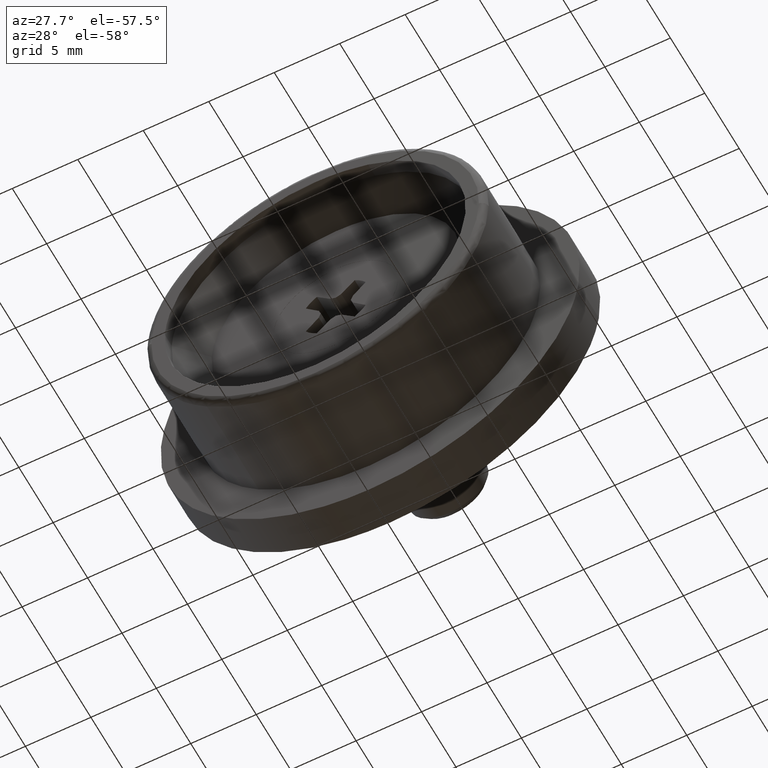
[diagram: clean part render]
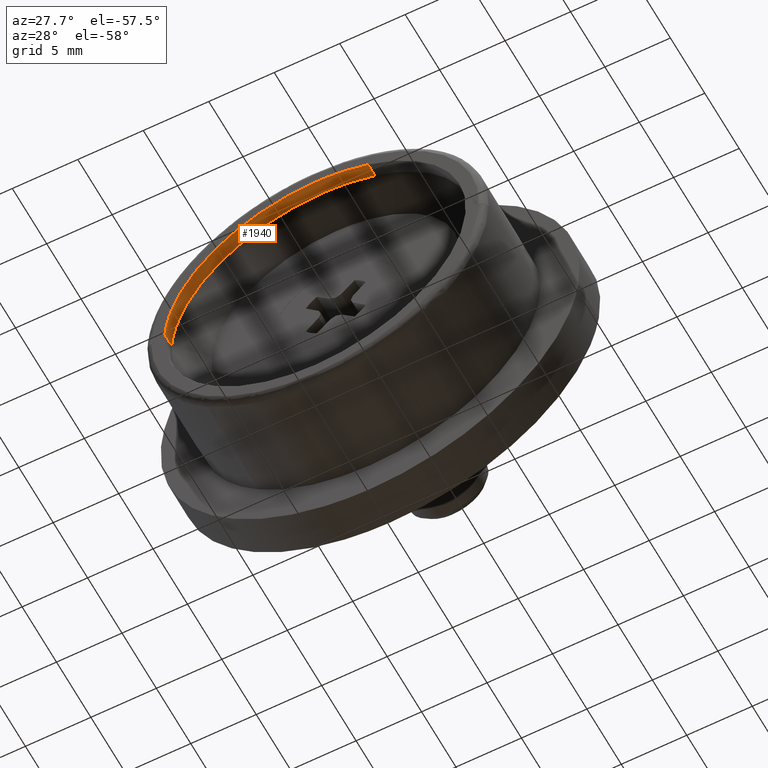
[diagram: same view with one face highlighted and labeled with its STEP entity id]
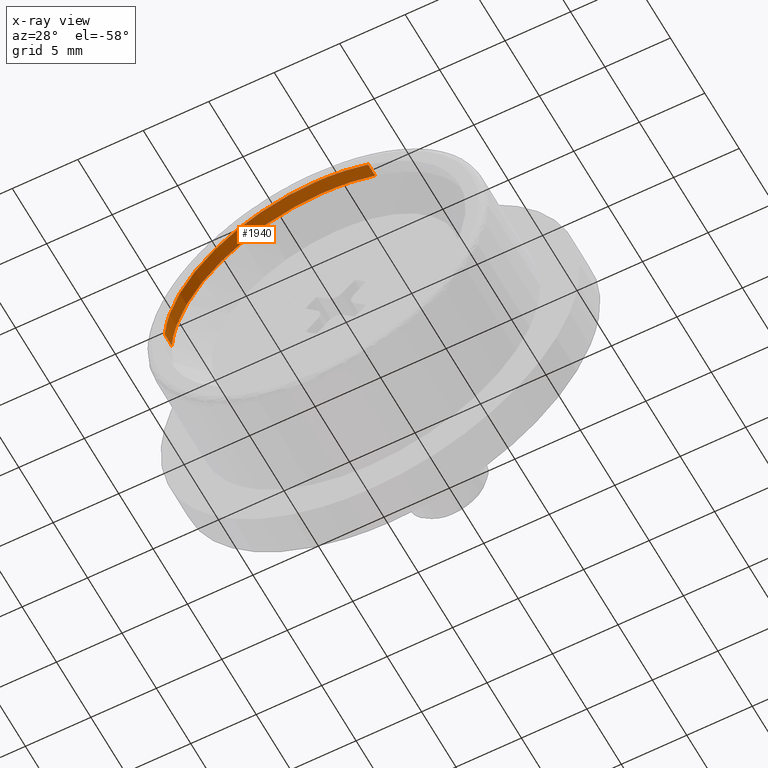
[diagram: x-ray of the same camera — body ghosted, the highlighted face saturated]
A machine part, auxiliary view. The second image highlights one B-rep face of the part: STEP entity #1940.
The next image is the same camera in x-ray: the body ghosted, the highlighted face saturated — about 0% of this face is hidden behind the body in this view.
In plain terms, the highlighted face is a freeform B-spline surface patch.
Its self-contained STEP definition (entity closure, byte-faithful):
#1842=CARTESIAN_POINT('',(4.144637516864448,1.025000000000000,10.727703719184255));
#1843=CARTESIAN_POINT('',(4.094063270624864,1.025000000000000,10.746699538225583));
#1844=CARTESIAN_POINT('',(2.426378694727196,1.025000000000000,11.373086222699232));
#1845=CARTESIAN_POINT('',(0.702058204650855,1.025000000000000,11.478550181851469));
#1846=CARTESIAN_POINT('',(-10.776491977200612,1.025000000000000,12.180608386502323));
#1847=CARTESIAN_POINT('',(-11.481523888814671,1.025000000000000,0.653438525574253));
#1848=CARTESIAN_POINT('',(-11.484487179411753,1.025000000000000,0.604989152578095));
#1849=CARTESIAN_POINT('',(4.144637516864448,-0.025625000000002,10.727703719184255));
#1850=CARTESIAN_POINT('',(4.094063270624864,-0.025625000000002,10.746699538225583));
#1851=CARTESIAN_POINT('',(2.426378694727196,-0.025625000000002,11.373086222699232));
#1852=CARTESIAN_POINT('',(0.702058204650855,-0.025625000000002,11.478550181851469));
#1853=CARTESIAN_POINT('',(-10.776491977200612,-0.025625000000002,12.180608386502323));
#1854=CARTESIAN_POINT('',(-11.481523888814671,-0.025625000000002,0.653438525574253));
#1855=CARTESIAN_POINT('',(-11.484487179411753,-0.025625000000002,0.604989152578095));
#1863=(BOUNDED_SURFACE()B_SPLINE_SURFACE(2,1,((#1842,#1849),(#1843,#1850),(#1844,#1851),(#1845,#1852),(#1846,#1853),(#1847,#1854),(#1848,#1855)),.UNSPECIFIED.,.F.,.F.,.U.)B_SPLINE_SURFACE_WITH_KNOTS((3,1,2,1,3),(2,2),(0.0,0.114321667855702,3.925086441688176,22.978910310850541,23.093246793202340),(0.0,1.0),.UNSPECIFIED.)GEOMETRIC_REPRESENTATION_ITEM()RATIONAL_B_SPLINE_SURFACE(((0.904165362329852,0.904165362329852),(0.905219766154774,0.905219766154774),(0.941421356237309,0.941421356237309),(1.0,1.0),(0.707106781186548,0.707106781186548),(1.001757567434956,1.001757567434956),(1.003515134869912,1.003515134869912)))REPRESENTATION_ITEM('')SURFACE());
#1864=CARTESIAN_POINT('',(4.043602687159288,1.000000000000059,10.765652665230281));
#1865=VERTEX_POINT('',#1864);
#1866=CARTESIAN_POINT('',(0.0,1.0,11.500000000000000));
#1867=VERTEX_POINT('',#1866);
#1868=CARTESIAN_POINT('',(4.043602687159288,1.000000000000059,10.765652665230276));
#1869=CARTESIAN_POINT('',(2.088482722761117,1.0,11.500000000000005));
#1870=CARTESIAN_POINT('',(0.0,1.0,11.500000000000000));
#1878=(BOUNDED_CURVE()B_SPLINE_CURVE(2,(#1868,#1869,#1870),.UNSPECIFIED.,.F.,.U.)B_SPLINE_CURVE_WITH_KNOTS((3,3),(0.440284229854649,0.500000000000000),.UNSPECIFIED.)CURVE()GEOMETRIC_REPRESENTATION_ITEM()RATIONAL_B_SPLINE_CURVE((0.893499626783629,0.930038623472816,1.0))REPRESENTATION_ITEM(''));
#1879=EDGE_CURVE('',#1865,#1867,#1878,.T.);
#1880=ORIENTED_EDGE('',*,*,#1879,.F.);
#1881=CARTESIAN_POINT('',(4.043605529739581,-2.120477E-015,10.765651597551260));
#1882=VERTEX_POINT('',#1881);
#1883=CARTESIAN_POINT('',(4.043602687159288,1.000000000000059,10.765652665230281));
#1884=CARTESIAN_POINT('',(4.043605529739581,-2.120477E-015,10.765651597551260));
#1885=QUASI_UNIFORM_CURVE('',1,(#1883,#1884),.UNSPECIFIED.,.F.,.U.);
#1886=EDGE_CURVE('',#1865,#1882,#1885,.T.);
#1887=ORIENTED_EDGE('',*,*,#1886,.T.);
#1888=CARTESIAN_POINT('',(0.0,-2.112446E-015,11.500000000000000));
#1889=VERTEX_POINT('',#1888);
#1890=CARTESIAN_POINT('',(4.043605529739581,-2.120477E-015,10.765651597551255));
#1891=CARTESIAN_POINT('',(2.088484291073677,-2.112446E-015,11.500000000000000));
#1892=CARTESIAN_POINT('',(0.0,-2.112446E-015,11.500000000000000));
#1900=(BOUNDED_CURVE()B_SPLINE_CURVE(2,(#1890,#1891,#1892),.UNSPECIFIED.,.F.,.U.)B_SPLINE_CURVE_WITH_KNOTS((3,3),(0.440284188149303,0.500000000000000),.UNSPECIFIED.)CURVE()GEOMETRIC_REPRESENTATION_ITEM()RATIONAL_B_SPLINE_CURVE((0.893499575746155,0.930038574611963,1.0))REPRESENTATION_ITEM(''));
#1901=EDGE_CURVE('',#1882,#1889,#1900,.T.);
#1902=ORIENTED_EDGE('',*,*,#1901,.T.);
#1903=CARTESIAN_POINT('',(-11.478550884308071,-2.298285E-015,0.702046719398285));
#1904=VERTEX_POINT('',#1903);
#1905=CARTESIAN_POINT('',(0.0,-2.112446E-015,11.500000000000000));
#1906=CARTESIAN_POINT('',(-10.818130614083943,-2.112446E-015,11.499999999999998));
#1907=CARTESIAN_POINT('',(-11.478550884308078,-2.298285E-015,0.702046719398285));
#1915=(BOUNDED_CURVE()B_SPLINE_CURVE(2,(#1905,#1906,#1907),.UNSPECIFIED.,.F.,.U.)B_SPLINE_CURVE_WITH_KNOTS((3,3),(0.500000000000000,0.739333134889531),.UNSPECIFIED.)CURVE()GEOMETRIC_REPRESENTATION_ITEM()RATIONAL_B_SPLINE_CURVE((1.0,0.719603791013964,0.976072411690073))REPRESENTATION_ITEM(''));
#1916=EDGE_CURVE('',#1889,#1904,#1915,.T.);
#1917=ORIENTED_EDGE('',*,*,#1916,.T.);
#1918=CARTESIAN_POINT('',(-11.478550181853009,0.999999999995823,0.702058204672716));
#1919=VERTEX_POINT('',#1918);
#1920=CARTESIAN_POINT('',(-11.478550181853009,0.999999999995823,0.702058204672716));
#1921=CARTESIAN_POINT('',(-11.478550884308071,-2.298285E-015,0.702046719398285));
#1922=QUASI_UNIFORM_CURVE('',1,(#1920,#1921),.UNSPECIFIED.,.F.,.U.);
#1923=EDGE_CURVE('',#1919,#1904,#1922,.T.);
#1924=ORIENTED_EDGE('',*,*,#1923,.F.);
#1925=CARTESIAN_POINT('',(0.0,1.0,11.500000000000000));
#1926=CARTESIAN_POINT('',(-10.818119769333544,1.0,11.500000000000000));
#1927=CARTESIAN_POINT('',(-11.478550181853016,0.999999999995823,0.702058204672716));
#1935=(BOUNDED_CURVE()B_SPLINE_CURVE(2,(#1925,#1926,#1927),.UNSPECIFIED.,.F.,.U.)B_SPLINE_CURVE_WITH_KNOTS((3,3),(0.500000000000000,0.739332962240664),.UNSPECIFIED.)CURVE()GEOMETRIC_REPRESENTATION_ITEM()RATIONAL_B_SPLINE_CURVE((1.0,0.719603993284694,0.976072041670406))REPRESENTATION_ITEM(''));
#1936=EDGE_CURVE('',#1867,#1919,#1935,.T.);
#1937=ORIENTED_EDGE('',*,*,#1936,.F.);
#1938=EDGE_LOOP('',(#1880,#1887,#1902,#1917,#1924,#1937));
#1939=FACE_OUTER_BOUND('',#1938,.T.);
#1940=ADVANCED_FACE('',(#1939),#1863,.F.);